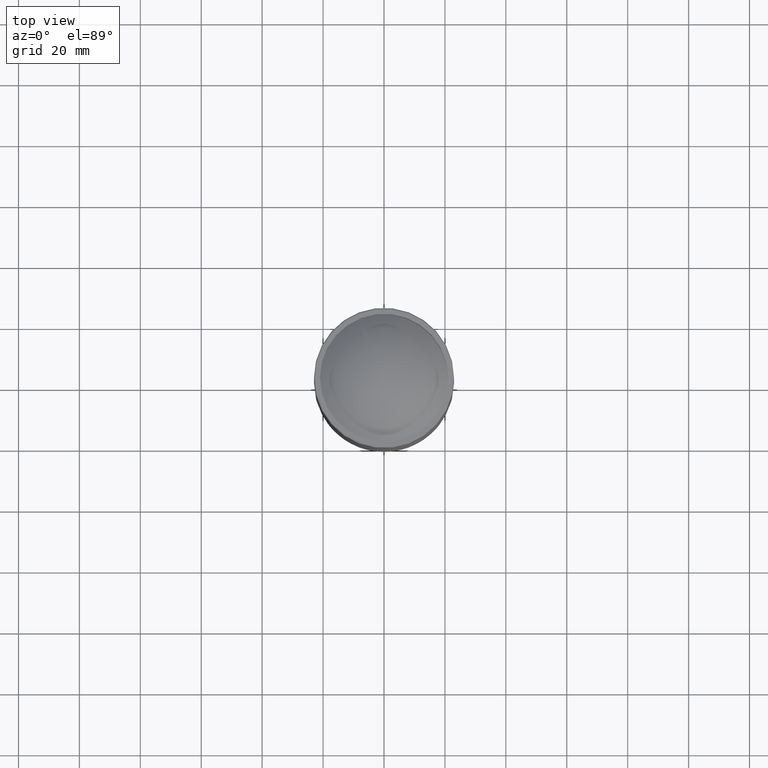
[diagram: clean part render]
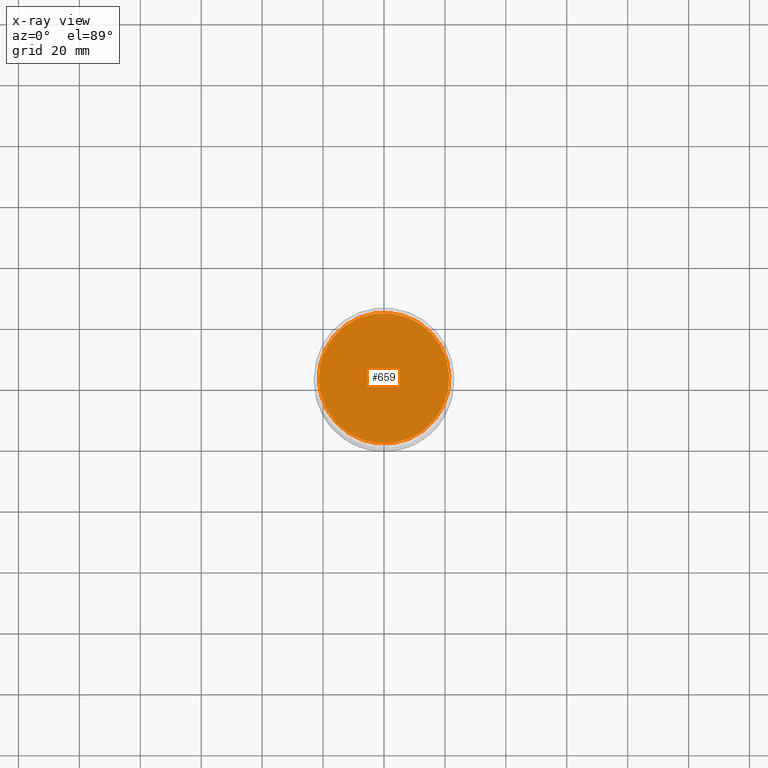
[diagram: x-ray — body ghosted, one internal face saturated and labeled with its STEP entity id]
A machine part, top view, then the same camera in x-ray: the body is ghosted and one INTERNAL B-rep face — a face not visible from any outside direction — is saturated and labeled: STEP entity #659.
In plain terms, the highlighted planar face has unit normal (-0, 0, 1).
Its self-contained STEP definition (entity closure, byte-faithful):
#39 = DIRECTION ( 'NONE',  ( -1.848892746611746419E-32, 1.318609258053556101E-16, 1.000000000000000000 ) ) ;
#213 = AXIS2_PLACEMENT_3D ( 'NONE', #691, #39, #638 ) ;
#292 = CARTESIAN_POINT ( 'NONE',  ( -2.775557561562891351E-14, 1.387778780781445676E-14, -464.9999999999999432 ) ) ;
#436 = VERTEX_POINT ( 'NONE', #639 ) ;
#496 = DIRECTION ( 'NONE',  ( 0.3830490080632379390, -0.9237280213470682178, 0.000000000000000000 ) ) ;
#563 = DIRECTION ( 'NONE',  ( -1.232595164407830946E-32, -1.318609258053555361E-16, -1.000000000000000000 ) ) ;
#576 = FACE_OUTER_BOUND ( 'NONE', #768, .T. ) ;
#629 = PLANE ( 'NONE',  #213 ) ;
#632 = CIRCLE ( 'NONE', #847, 21.45211006975307555 ) ;
#638 = DIRECTION ( 'NONE',  ( 0.3830490080632378835, -0.9237280213470681067, 1.218036320871736945E-16 ) ) ;
#639 = CARTESIAN_POINT ( 'NONE',  ( 8.217209483082285715, -19.81591518845251088, -464.9999999999999432 ) ) ;
#659 = ADVANCED_FACE ( 'NONE', ( #576 ), #629, .F. ) ;
#691 = CARTESIAN_POINT ( 'NONE',  ( -7.311375404722681104, -63.84507486142585009, -464.9999999999999432 ) ) ;
#754 = EDGE_CURVE ( 'NONE', #436, #436, #632, .T. ) ;
#768 = EDGE_LOOP ( 'NONE', ( #839 ) ) ;
#839 = ORIENTED_EDGE ( 'NONE', *, *, #754, .T. ) ;
#847 = AXIS2_PLACEMENT_3D ( 'NONE', #292, #563, #496 ) ;